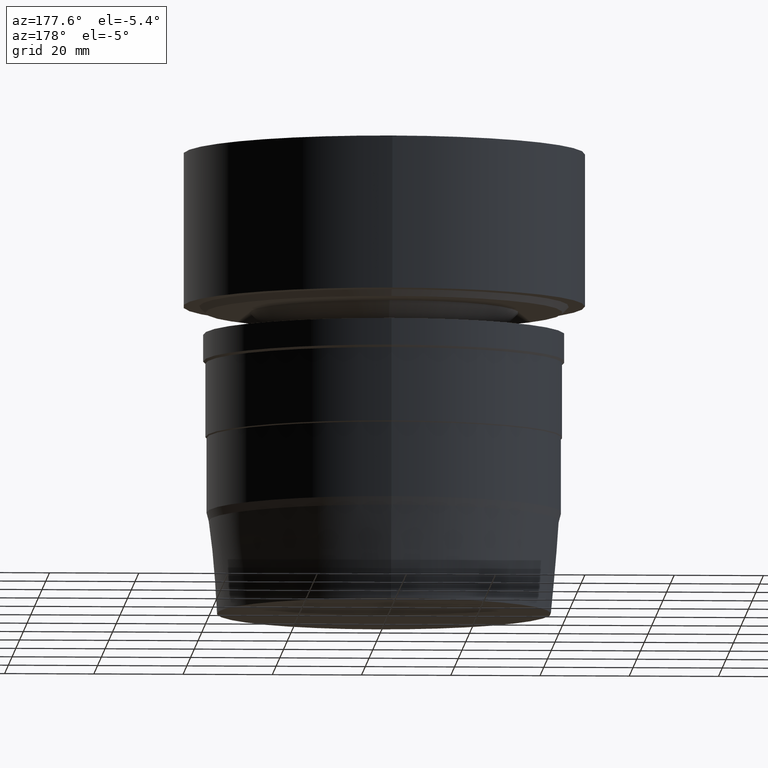
[diagram: clean part render]
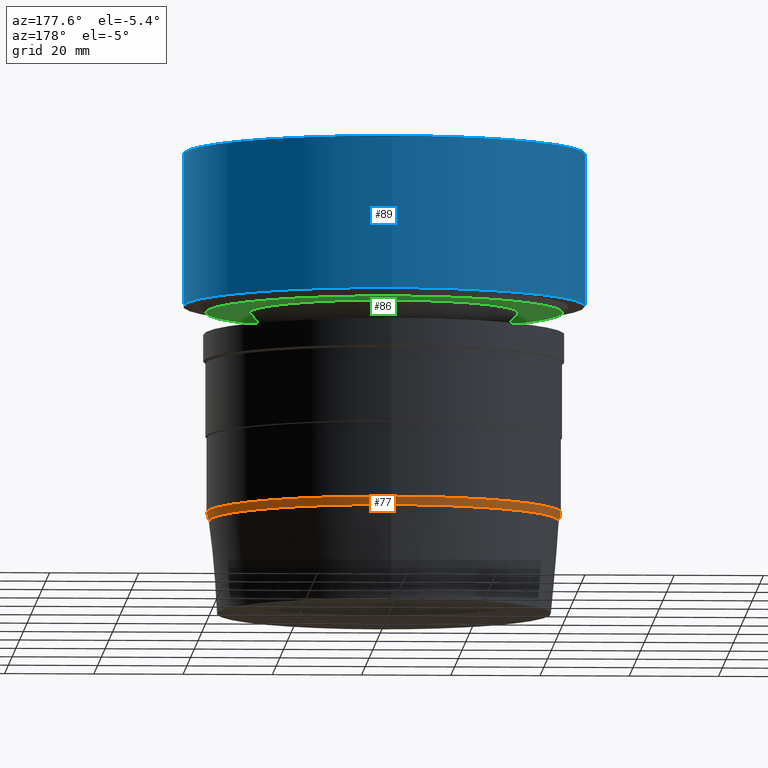
[diagram: same view with three faces highlighted in distinct colors, each labeled with its STEP entity id]
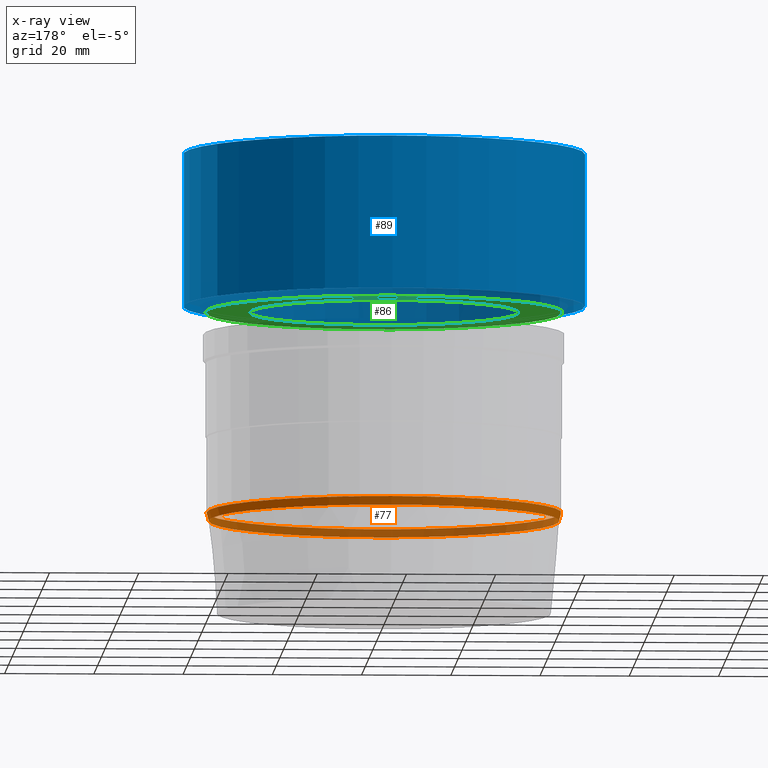
[diagram: x-ray of the same camera — body ghosted, the three highlighted faces saturated]
A machine part, auxiliary view with three faces highlighted in distinct colors.
The next image is the same camera in x-ray (body ghosted, the three faces saturated) — at least one of them is partly hidden behind the body in this view.
Their STEP definitions:

[orange] entity #77 — the highlighted conical surface has half-angle 15 deg.
#77=ADVANCED_FACE('',(#97,#98),#99,.T.);
#97=FACE_BOUND('',#143,.T.);
#98=FACE_BOUND('',#144,.T.);
#99=CONICAL_SURFACE('',#145,39.5,0.261799388306166);
#143=EDGE_LOOP('',(#193));
#144=EDGE_LOOP('',(#194));
#145=AXIS2_PLACEMENT_3D('',#195,#196,#197);
#193=ORIENTED_EDGE('',*,*,#264,.F.);
#194=ORIENTED_EDGE('',*,*,#263,.T.);
#195=CARTESIAN_POINT('',(4.99245715139478E-015,9.98491430278955E-015,-81.5330127));
#196=DIRECTION('',(-6.12323399573677E-017,-1.22464679914735E-016,1.0));
#197=DIRECTION('',(-1.23259516440783E-032,1.0,1.22464679914735E-016));
#263=EDGE_CURVE('',#279,#279,#280,.T.);
#264=EDGE_CURVE('',#281,#281,#282,.T.);
#279=VERTEX_POINT('',#309);
#280=CIRCLE('',#310,39.25);
#281=VERTEX_POINT('',#311);
#282=CIRCLE('',#312,39.75);
#309=CARTESIAN_POINT('',(5.04958770222572E-015,39.25,-82.4660254));
#310=AXIS2_PLACEMENT_3D('',#340,#341,#342);
#311=CARTESIAN_POINT('',(4.93532660056383E-015,39.75,-80.6));
#312=AXIS2_PLACEMENT_3D('',#343,#344,#345);
#340=CARTESIAN_POINT('',(5.04958770222572E-015,1.00991754044514E-014,-82.4660254));
#341=DIRECTION('',(-6.12323399573677E-017,-1.22464679914735E-016,1.0));
#342=DIRECTION('',(-1.23259516440783E-032,1.0,1.22464679914735E-016));
#343=CARTESIAN_POINT('',(4.93532660056383E-015,9.87065320112766E-015,-80.6));
#344=DIRECTION('',(-6.12323399573677E-017,-1.22464679914735E-016,1.0));
#345=DIRECTION('',(-1.23259516440783E-032,1.0,1.22464679914735E-016));

[blue] entity #89 — the highlighted cylindrical surface (bore or boss wall) has radius 45 mm, axis along (0, 0, -1).
#89=ADVANCED_FACE('',(#133,#134),#135,.T.);
#133=FACE_BOUND('',#179,.T.);
#134=FACE_BOUND('',#180,.T.);
#135=CYLINDRICAL_SURFACE('',#181,45.0);
#179=EDGE_LOOP('',(#253));
#180=EDGE_LOOP('',(#254));
#181=AXIS2_PLACEMENT_3D('',#255,#256,#257);
#253=ORIENTED_EDGE('',*,*,#276,.F.);
#254=ORIENTED_EDGE('',*,*,#275,.T.);
#255=CARTESIAN_POINT('',(1.04707301327099E-015,2.09414602654197E-015,-17.1));
#256=DIRECTION('',(6.12323399573677E-017,1.22464679914735E-016,-1.0));
#257=DIRECTION('',(-1.23259516440783E-032,1.0,1.22464679914735E-016));
#275=EDGE_CURVE('',#303,#303,#304,.T.);
#276=EDGE_CURVE('',#305,#305,#306,.T.);
#303=VERTEX_POINT('',#333);
#304=CIRCLE('',#334,45.0);
#305=VERTEX_POINT('',#335);
#306=CIRCLE('',#336,45.0);
#333=CARTESIAN_POINT('',(2.09414602654197E-015,45.0,-34.2));
#334=AXIS2_PLACEMENT_3D('',#376,#377,#378);
#335=CARTESIAN_POINT('',(-5.54667823983524E-031,45.0,5.51091059616309E-015));
#336=AXIS2_PLACEMENT_3D('',#379,#380,#381);
#376=CARTESIAN_POINT('',(2.09414602654197E-015,4.18829205308395E-015,-34.2));
#377=DIRECTION('',(-6.12323399573677E-017,-1.22464679914735E-016,1.0));
#378=DIRECTION('',(-1.23259516440783E-032,1.0,1.22464679914735E-016));
#379=CARTESIAN_POINT('',(0.0,0.0,0.0));
#380=DIRECTION('',(-6.12323399573677E-017,-1.22464679914735E-016,1.0));
#381=DIRECTION('',(-1.23259516440783E-032,1.0,1.22464679914735E-016));

[green] entity #86 — the highlighted planar face has unit normal (0, 0, -1).
#86=ADVANCED_FACE('',(#124,#125),#126,.T.);
#124=FACE_OUTER_BOUND('',#170,.T.);
#125=FACE_BOUND('',#171,.T.);
#126=PLANE('',#172);
#170=EDGE_LOOP('',(#238));
#171=EDGE_LOOP('',(#239));
#172=AXIS2_PLACEMENT_3D('',#240,#241,#242);
#238=ORIENTED_EDGE('',*,*,#273,.F.);
#239=ORIENTED_EDGE('',*,*,#272,.T.);
#240=CARTESIAN_POINT('',(2.17987130248229E-015,35.075,-35.6));
#241=DIRECTION('',(6.12323399573677E-017,1.22464679914735E-016,-1.0));
#242=DIRECTION('',(1.23259516440783E-032,-1.0,-1.22464679914735E-016));
#272=EDGE_CURVE('',#297,#297,#298,.T.);
#273=EDGE_CURVE('',#299,#299,#300,.T.);
#297=VERTEX_POINT('',#327);
#298=CIRCLE('',#328,30.15);
#299=VERTEX_POINT('',#329);
#300=CIRCLE('',#330,40.0);
#327=CARTESIAN_POINT('',(2.17987130248229E-015,30.15,-35.6));
#328=AXIS2_PLACEMENT_3D('',#367,#368,#369);
#329=CARTESIAN_POINT('',(2.17987130248229E-015,40.0,-35.6));
#330=AXIS2_PLACEMENT_3D('',#370,#371,#372);
#367=CARTESIAN_POINT('',(2.17987130248229E-015,4.35974260496458E-015,-35.6));
#368=DIRECTION('',(-6.12323399573677E-017,-1.22464679914735E-016,1.0));
#369=DIRECTION('',(-1.23259516440783E-032,1.0,1.22464679914735E-016));
#370=CARTESIAN_POINT('',(2.17987130248229E-015,4.35974260496458E-015,-35.6));
#371=DIRECTION('',(-6.12323399573677E-017,-1.22464679914735E-016,1.0));
#372=DIRECTION('',(-1.23259516440783E-032,1.0,1.22464679914735E-016));